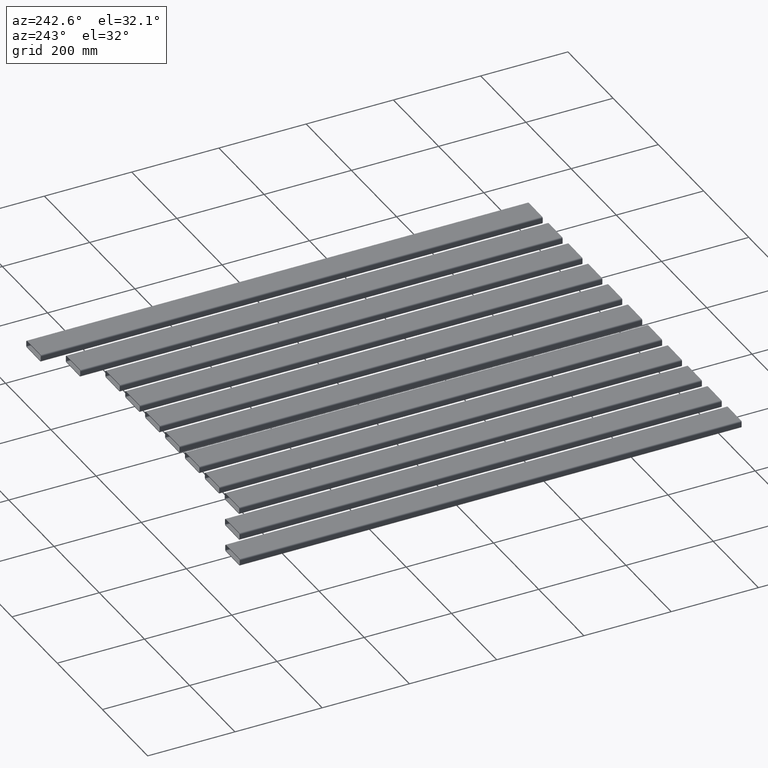
[diagram: clean part render]
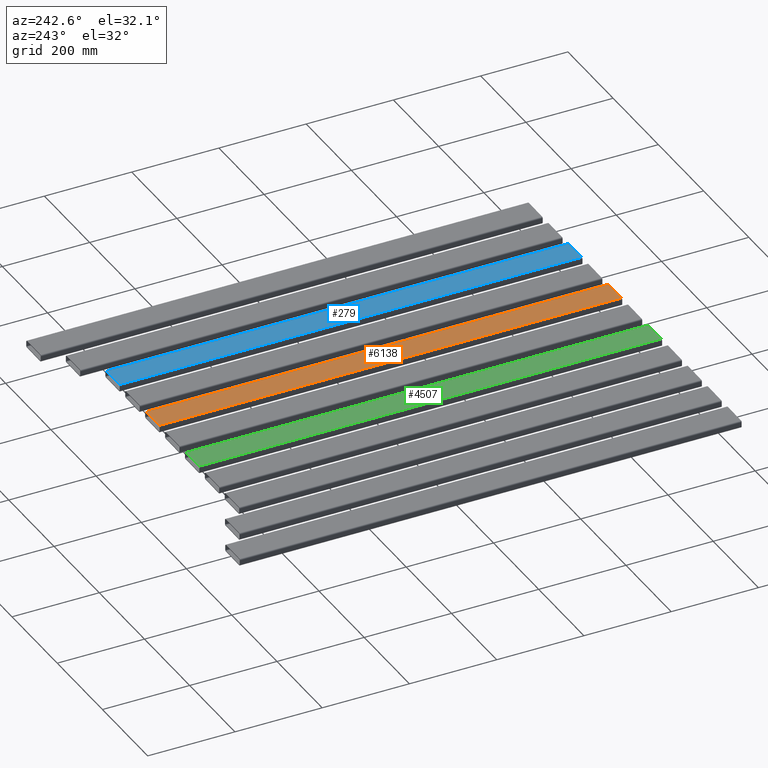
[diagram: same view with three faces highlighted in distinct colors, each labeled with its STEP entity id]
A machine part, auxiliary view with three faces highlighted in distinct colors.
Their STEP definitions:

[orange] entity #6138 — the highlighted planar face has unit normal (-0, -0, 1).
#10 = FACE_OUTER_BOUND ( 'NONE', #546, .T. ) ;
#57 = LINE ( 'NONE', #5810, #1187 ) ;
#225 = ORIENTED_EDGE ( 'NONE', *, *, #1743, .T. ) ;
#291 = ORIENTED_EDGE ( 'NONE', *, *, #4910, .F. ) ;
#519 = CARTESIAN_POINT ( 'NONE',  ( 58.49999999999994316, -634.9999999999998863, 7.999999999999894307 ) ) ;
#537 = LINE ( 'NONE', #6286, #4866 ) ;
#546 = EDGE_LOOP ( 'NONE', ( #291, #4101, #2145, #225 ) ) ;
#813 = CARTESIAN_POINT ( 'NONE',  ( -296.4999999999998863, 425.0000000000000568, 8.000000000000117240 ) ) ;
#994 = DIRECTION ( 'NONE',  ( -9.654113257610061536E-17, 1.000000000000000000, 0.000000000000000000 ) ) ;
#1187 = VECTOR ( 'NONE', #994, 1000.000000000000000 ) ;
#1261 = EDGE_CURVE ( 'NONE', #3960, #1979, #1299, .T. ) ;
#1299 = LINE ( 'NONE', #1960, #5313 ) ;
#1358 = CARTESIAN_POINT ( 'NONE',  ( 117.4999999999999432, -634.9999999999998863, 8.000000000000117240 ) ) ;
#1743 = EDGE_CURVE ( 'NONE', #1979, #5823, #57, .T. ) ;
#1929 = DIRECTION ( 'NONE',  ( -9.654113257610061536E-17, 1.000000000000000000, 0.000000000000000000 ) ) ;
#1960 = CARTESIAN_POINT ( 'NONE',  ( 58.49999999999994316, -634.9999999999998863, 7.999999999999894307 ) ) ;
#1979 = VERTEX_POINT ( 'NONE', #1358 ) ;
#1994 = DIRECTION ( 'NONE',  ( 1.000000000000000000, 2.456885286160903759E-32, 3.763467880085276636E-15 ) ) ;
#2145 = ORIENTED_EDGE ( 'NONE', *, *, #1261, .T. ) ;
#2890 = DIRECTION ( 'NONE',  ( -3.763467880085276636E-15, -3.636155735003101291E-31, 1.000000000000000000 ) ) ;
#2909 = VECTOR ( 'NONE', #3750, 1000.000000000000000 ) ;
#2972 = DIRECTION ( 'NONE',  ( 1.000000000000000000, 2.456885286160903759E-32, 3.763467880085276636E-15 ) ) ;
#3002 = PLANE ( 'NONE',  #5535 ) ;
#3157 = VERTEX_POINT ( 'NONE', #4119 ) ;
#3427 = EDGE_CURVE ( 'NONE', #3960, #3157, #537, .T. ) ;
#3609 = CARTESIAN_POINT ( 'NONE',  ( 117.4999999999999432, 425.0000000000000568, 8.000000000000117240 ) ) ;
#3750 = DIRECTION ( 'NONE',  ( 1.000000000000000000, 5.414999088785041162E-33, 0.000000000000000000 ) ) ;
#3960 = VERTEX_POINT ( 'NONE', #5608 ) ;
#4101 = ORIENTED_EDGE ( 'NONE', *, *, #3427, .F. ) ;
#4119 = CARTESIAN_POINT ( 'NONE',  ( 58.49999999999982947, 425.0000000000000568, 8.000000000000117240 ) ) ;
#4866 = VECTOR ( 'NONE', #1929, 1000.000000000000000 ) ;
#4910 = EDGE_CURVE ( 'NONE', #3157, #5823, #5598, .T. ) ;
#5313 = VECTOR ( 'NONE', #2972, 1000.000000000000000 ) ;
#5535 = AXIS2_PLACEMENT_3D ( 'NONE', #519, #2890, #1994 ) ;
#5598 = LINE ( 'NONE', #813, #2909 ) ;
#5608 = CARTESIAN_POINT ( 'NONE',  ( 58.49999999999994316, -634.9999999999998863, 7.999999999999894307 ) ) ;
#5810 = CARTESIAN_POINT ( 'NONE',  ( 117.4999999999999432, -634.9999999999998863, 8.000000000000117240 ) ) ;
#5823 = VERTEX_POINT ( 'NONE', #3609 ) ;
#6138 = ADVANCED_FACE ( 'NONE', ( #10 ), #3002, .T. ) ;
#6286 = CARTESIAN_POINT ( 'NONE',  ( 58.49999999999994316, -634.9999999999998863, 7.999999999999894307 ) ) ;

[blue] entity #279 — the highlighted planar face has unit normal (-0, -0, 1).
#35 = CARTESIAN_POINT ( 'NONE',  ( 234.4999999999998863, -634.9999999999998863, 7.999999999999894307 ) ) ;
#258 = CARTESIAN_POINT ( 'NONE',  ( 234.4999999999998863, -634.9999999999998863, 7.999999999999894307 ) ) ;
#279 = ADVANCED_FACE ( 'NONE', ( #4304 ), #4726, .T. ) ;
#577 = LINE ( 'NONE', #949, #3964 ) ;
#586 = CARTESIAN_POINT ( 'NONE',  ( 293.4999999999998863, -634.9999999999998863, 8.000000000000117240 ) ) ;
#695 = LINE ( 'NONE', #5425, #5758 ) ;
#919 = LINE ( 'NONE', #4327, #2854 ) ;
#949 = CARTESIAN_POINT ( 'NONE',  ( -296.4999999999999432, 425.0000000000000568, 8.000000000000117240 ) ) ;
#1131 = ORIENTED_EDGE ( 'NONE', *, *, #3095, .T. ) ;
#1244 = ORIENTED_EDGE ( 'NONE', *, *, #2056, .F. ) ;
#1336 = VERTEX_POINT ( 'NONE', #35 ) ;
#1369 = DIRECTION ( 'NONE',  ( 1.000000000000000000, 3.573448095223636480E-33, 0.000000000000000000 ) ) ;
#1380 = DIRECTION ( 'NONE',  ( -3.763467880085276636E-15, -3.636155735003101291E-31, 1.000000000000000000 ) ) ;
#1456 = DIRECTION ( 'NONE',  ( -9.654113257610057838E-17, 1.000000000000000000, 0.000000000000000000 ) ) ;
#2056 = EDGE_CURVE ( 'NONE', #1336, #4674, #3805, .T. ) ;
#2186 = VECTOR ( 'NONE', #6123, 1000.000000000000000 ) ;
#2854 = VECTOR ( 'NONE', #6301, 1000.000000000000000 ) ;
#2944 = EDGE_LOOP ( 'NONE', ( #5479, #1244, #1131, #4995 ) ) ;
#2953 = VERTEX_POINT ( 'NONE', #4949 ) ;
#2977 = CARTESIAN_POINT ( 'NONE',  ( 234.4999999999998295, 425.0000000000000568, 8.000000000000117240 ) ) ;
#3009 = EDGE_CURVE ( 'NONE', #4674, #2953, #577, .T. ) ;
#3095 = EDGE_CURVE ( 'NONE', #1336, #4731, #919, .T. ) ;
#3766 = DIRECTION ( 'NONE',  ( 1.000000000000000000, -9.821624059309300614E-33, 3.763467880085276636E-15 ) ) ;
#3800 = CARTESIAN_POINT ( 'NONE',  ( 234.4999999999998863, -634.9999999999998863, 7.999999999999894307 ) ) ;
#3805 = LINE ( 'NONE', #258, #2186 ) ;
#3859 = AXIS2_PLACEMENT_3D ( 'NONE', #3800, #1380, #3766 ) ;
#3964 = VECTOR ( 'NONE', #1369, 1000.000000000000000 ) ;
#4304 = FACE_OUTER_BOUND ( 'NONE', #2944, .T. ) ;
#4327 = CARTESIAN_POINT ( 'NONE',  ( 234.4999999999998863, -634.9999999999998863, 7.999999999999894307 ) ) ;
#4674 = VERTEX_POINT ( 'NONE', #2977 ) ;
#4726 = PLANE ( 'NONE',  #3859 ) ;
#4731 = VERTEX_POINT ( 'NONE', #586 ) ;
#4949 = CARTESIAN_POINT ( 'NONE',  ( 293.4999999999998863, 425.0000000000000568, 8.000000000000117240 ) ) ;
#4995 = ORIENTED_EDGE ( 'NONE', *, *, #5149, .T. ) ;
#5149 = EDGE_CURVE ( 'NONE', #4731, #2953, #695, .T. ) ;
#5425 = CARTESIAN_POINT ( 'NONE',  ( 293.4999999999998863, -634.9999999999998863, 8.000000000000117240 ) ) ;
#5479 = ORIENTED_EDGE ( 'NONE', *, *, #3009, .F. ) ;
#5758 = VECTOR ( 'NONE', #1456, 1000.000000000000000 ) ;
#6123 = DIRECTION ( 'NONE',  ( -9.654113257610057838E-17, 1.000000000000000000, 0.000000000000000000 ) ) ;
#6301 = DIRECTION ( 'NONE',  ( 1.000000000000000000, -9.821624059309300614E-33, 3.763467880085276636E-15 ) ) ;

[green] entity #4507 — the highlighted planar face has unit normal (-0, -0, 1).
#411 = DIRECTION ( 'NONE',  ( 1.000000000000000000, 9.247412930367572401E-33, 3.763467880085276636E-15 ) ) ;
#437 = LINE ( 'NONE', #5800, #500 ) ;
#500 = VECTOR ( 'NONE', #2386, 1000.000000000000000 ) ;
#661 = LINE ( 'NONE', #2610, #3239 ) ;
#1211 = EDGE_CURVE ( 'NONE', #3817, #4920, #2353, .T. ) ;
#1237 = ORIENTED_EDGE ( 'NONE', *, *, #3504, .F. ) ;
#1404 = DIRECTION ( 'NONE',  ( -3.763467880085276636E-15, -3.628452015225552347E-31, 1.000000000000000000 ) ) ;
#1634 = LINE ( 'NONE', #4056, #4107 ) ;
#1774 = ORIENTED_EDGE ( 'NONE', *, *, #1211, .F. ) ;
#1819 = ORIENTED_EDGE ( 'NONE', *, *, #2989, .T. ) ;
#2324 = CARTESIAN_POINT ( 'NONE',  ( -117.5000000000000000, -634.9999999999998863, 7.999999999999894307 ) ) ;
#2353 = LINE ( 'NONE', #6262, #5177 ) ;
#2386 = DIRECTION ( 'NONE',  ( -9.654113257610057838E-17, 1.000000000000000000, 7.703719777548943412E-34 ) ) ;
#2610 = CARTESIAN_POINT ( 'NONE',  ( -117.5000000000000000, -634.9999999999998863, 7.999999999999894307 ) ) ;
#2989 = EDGE_CURVE ( 'NONE', #3184, #4920, #437, .T. ) ;
#3184 = VERTEX_POINT ( 'NONE', #4536 ) ;
#3239 = VECTOR ( 'NONE', #5574, 1000.000000000000000 ) ;
#3500 = CARTESIAN_POINT ( 'NONE',  ( -117.5000000000000995, 425.0000000000001137, 8.000000000000117240 ) ) ;
#3504 = EDGE_CURVE ( 'NONE', #6014, #3817, #661, .T. ) ;
#3587 = ORIENTED_EDGE ( 'NONE', *, *, #6233, .T. ) ;
#3817 = VERTEX_POINT ( 'NONE', #3500 ) ;
#3855 = PLANE ( 'NONE',  #4532 ) ;
#4056 = CARTESIAN_POINT ( 'NONE',  ( -117.5000000000000000, -634.9999999999998863, 7.999999999999894307 ) ) ;
#4107 = VECTOR ( 'NONE', #6061, 1000.000000000000000 ) ;
#4231 = CARTESIAN_POINT ( 'NONE',  ( -117.5000000000000000, -634.9999999999998863, 7.999999999999894307 ) ) ;
#4507 = ADVANCED_FACE ( 'NONE', ( #6178 ), #3855, .T. ) ;
#4532 = AXIS2_PLACEMENT_3D ( 'NONE', #4231, #1404, #411 ) ;
#4536 = CARTESIAN_POINT ( 'NONE',  ( -58.50000000000000000, -634.9999999999998863, 8.000000000000117240 ) ) ;
#4745 = CARTESIAN_POINT ( 'NONE',  ( -58.50000000000000000, 425.0000000000001137, 8.000000000000117240 ) ) ;
#4920 = VERTEX_POINT ( 'NONE', #4745 ) ;
#5177 = VECTOR ( 'NONE', #5756, 1000.000000000000000 ) ;
#5574 = DIRECTION ( 'NONE',  ( -9.654113257610057838E-17, 1.000000000000000000, 7.703719777548943412E-34 ) ) ;
#5756 = DIRECTION ( 'NONE',  ( 1.000000000000000000, -1.307309350919195564E-33, 0.000000000000000000 ) ) ;
#5800 = CARTESIAN_POINT ( 'NONE',  ( -58.50000000000000000, -634.9999999999998863, 8.000000000000117240 ) ) ;
#6014 = VERTEX_POINT ( 'NONE', #2324 ) ;
#6061 = DIRECTION ( 'NONE',  ( 1.000000000000000000, 9.247412930367572401E-33, 3.763467880085276636E-15 ) ) ;
#6178 = FACE_OUTER_BOUND ( 'NONE', #6257, .T. ) ;
#6233 = EDGE_CURVE ( 'NONE', #6014, #3184, #1634, .T. ) ;
#6257 = EDGE_LOOP ( 'NONE', ( #1774, #1237, #3587, #1819 ) ) ;
#6262 = CARTESIAN_POINT ( 'NONE',  ( -296.4999999999998863, 425.0000000000001137, 8.000000000000117240 ) ) ;